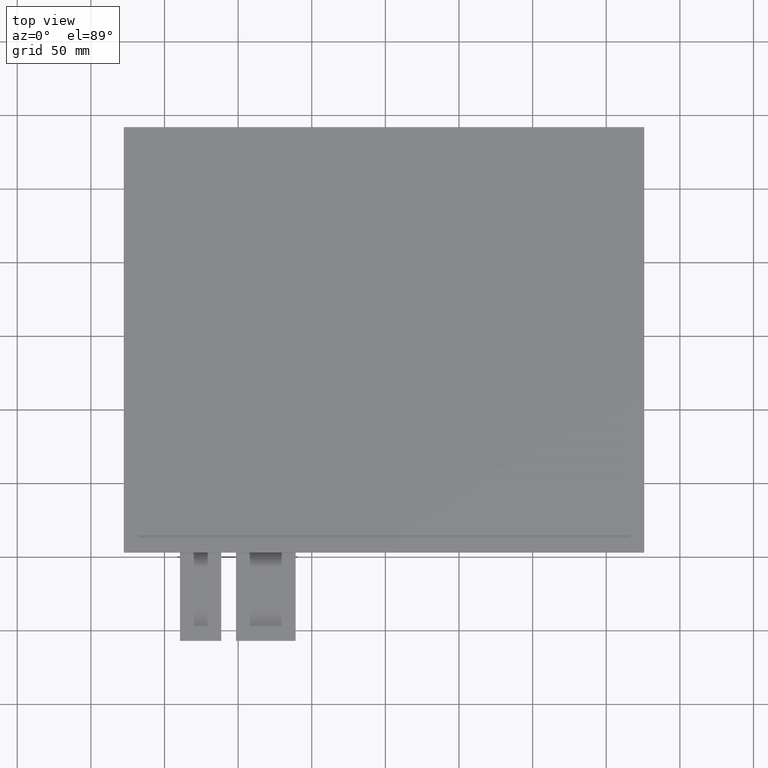
[diagram: clean part render]
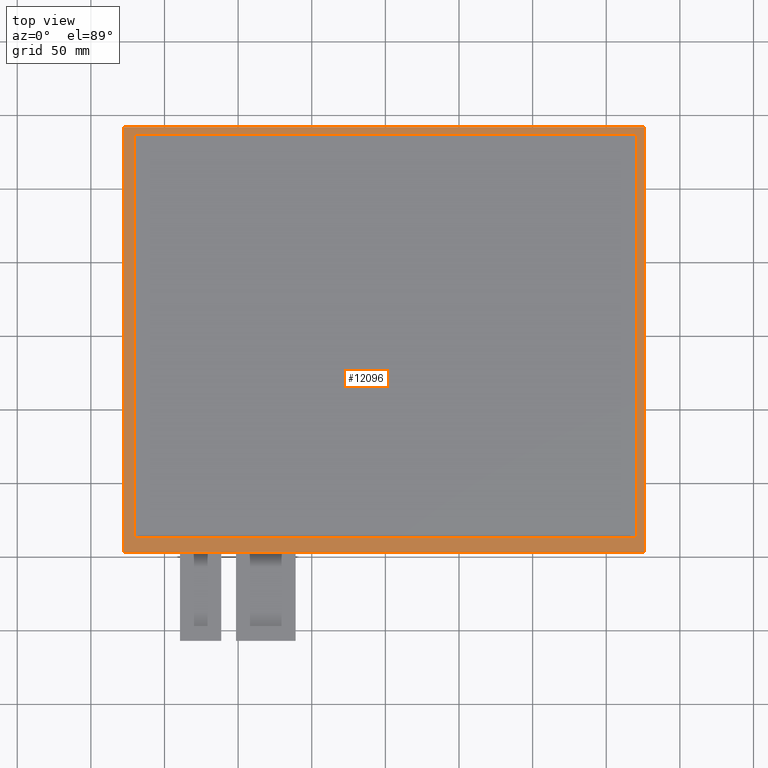
[diagram: same view with one face highlighted and labeled with its STEP entity id]
A machine part, top view. The second image highlights one B-rep face of the part: STEP entity #12096.
In plain terms, the highlighted planar face has unit normal (0, 0, 1).
Its self-contained STEP definition (entity closure, byte-faithful):
#68=FACE_BOUND('',#1796,.T.);
#638=PLANE('',#12702);
#1216=FACE_OUTER_BOUND('',#1795,.T.);
#1795=EDGE_LOOP('',(#11481,#11482,#11483,#11484));
#1796=EDGE_LOOP('',(#11485,#11486,#11487,#11488));
#3489=LINE('',#18981,#5197);
#3493=LINE('',#18989,#5201);
#3496=LINE('',#18995,#5204);
#3499=LINE('',#19000,#5207);
#3501=LINE('',#19006,#5209);
#3502=LINE('',#19008,#5210);
#3503=LINE('',#19010,#5211);
#3504=LINE('',#19011,#5212);
#5197=VECTOR('',#15545,10.);
#5201=VECTOR('',#15551,10.);
#5204=VECTOR('',#15556,10.);
#5207=VECTOR('',#15561,10.);
#5209=VECTOR('',#15567,10.);
#5210=VECTOR('',#15568,10.);
#5211=VECTOR('',#15569,10.);
#5212=VECTOR('',#15570,10.);
#6357=VERTEX_POINT('',#18979);
#6358=VERTEX_POINT('',#18980);
#6361=VERTEX_POINT('',#18988);
#6363=VERTEX_POINT('',#18994);
#6365=VERTEX_POINT('',#19004);
#6366=VERTEX_POINT('',#19005);
#6367=VERTEX_POINT('',#19007);
#6368=VERTEX_POINT('',#19009);
#8065=EDGE_CURVE('',#6357,#6358,#3489,.T.);
#8069=EDGE_CURVE('',#6361,#6357,#3493,.T.);
#8072=EDGE_CURVE('',#6363,#6361,#3496,.T.);
#8075=EDGE_CURVE('',#6358,#6363,#3499,.T.);
#8077=EDGE_CURVE('',#6365,#6366,#3501,.T.);
#8078=EDGE_CURVE('',#6366,#6367,#3502,.T.);
#8079=EDGE_CURVE('',#6367,#6368,#3503,.T.);
#8080=EDGE_CURVE('',#6368,#6365,#3504,.T.);
#11481=ORIENTED_EDGE('',*,*,#8077,.T.);
#11482=ORIENTED_EDGE('',*,*,#8078,.T.);
#11483=ORIENTED_EDGE('',*,*,#8079,.T.);
#11484=ORIENTED_EDGE('',*,*,#8080,.T.);
#11485=ORIENTED_EDGE('',*,*,#8065,.T.);
#11486=ORIENTED_EDGE('',*,*,#8075,.T.);
#11487=ORIENTED_EDGE('',*,*,#8072,.T.);
#11488=ORIENTED_EDGE('',*,*,#8069,.T.);
#12096=ADVANCED_FACE('',(#1216,#68),#638,.T.);
#12702=AXIS2_PLACEMENT_3D('',#19003,#15565,#15566);
#15545=DIRECTION('',(-2.59322166335803E-16,1.,0.));
#15551=DIRECTION('',(-1.,-1.04002156873551E-16,0.));
#15556=DIRECTION('',(0.,-1.,0.));
#15561=DIRECTION('',(1.,0.,0.));
#15565=DIRECTION('center_axis',(0.,0.,1.));
#15566=DIRECTION('ref_axis',(1.,0.,0.));
#15567=DIRECTION('',(-1.,0.,0.));
#15568=DIRECTION('',(2.45862538325294E-16,-1.,0.));
#15569=DIRECTION('',(1.,5.02505470834583E-17,0.));
#15570=DIRECTION('',(1.22931269162647E-16,1.,0.));
#18979=CARTESIAN_POINT('',(-170.8,-137.,0.));
#18980=CARTESIAN_POINT('',(-170.8,137.,0.));
#18981=CARTESIAN_POINT('',(-170.8,-69.745,0.));
#18988=CARTESIAN_POINT('',(170.8,-137.,0.));
#18989=CARTESIAN_POINT('',(84.93,-137.,0.));
#18994=CARTESIAN_POINT('',(170.8,137.,0.));
#18995=CARTESIAN_POINT('',(170.8,67.255,0.));
#19000=CARTESIAN_POINT('',(-85.8700000000001,137.,0.));
#19003=CARTESIAN_POINT('Origin',(-0.94000000000003,-2.48999999999998,0.));
#19004=CARTESIAN_POINT('',(175.81,142.01,0.));
#19005=CARTESIAN_POINT('',(-177.69,142.01,0.));
#19006=CARTESIAN_POINT('',(175.81,142.01,0.));
#19007=CARTESIAN_POINT('',(-177.69,-146.99,0.));
#19008=CARTESIAN_POINT('',(-177.69,142.01,0.));
#19009=CARTESIAN_POINT('',(175.81,-146.99,0.));
#19010=CARTESIAN_POINT('',(-177.69,-146.99,0.));
#19011=CARTESIAN_POINT('',(175.81,-146.99,0.));